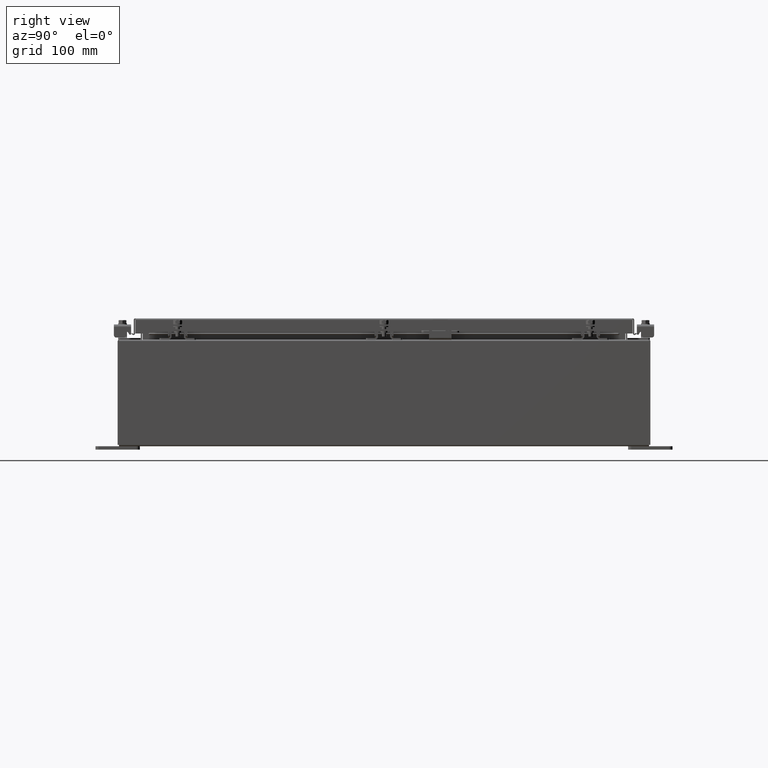
[diagram: clean part render]
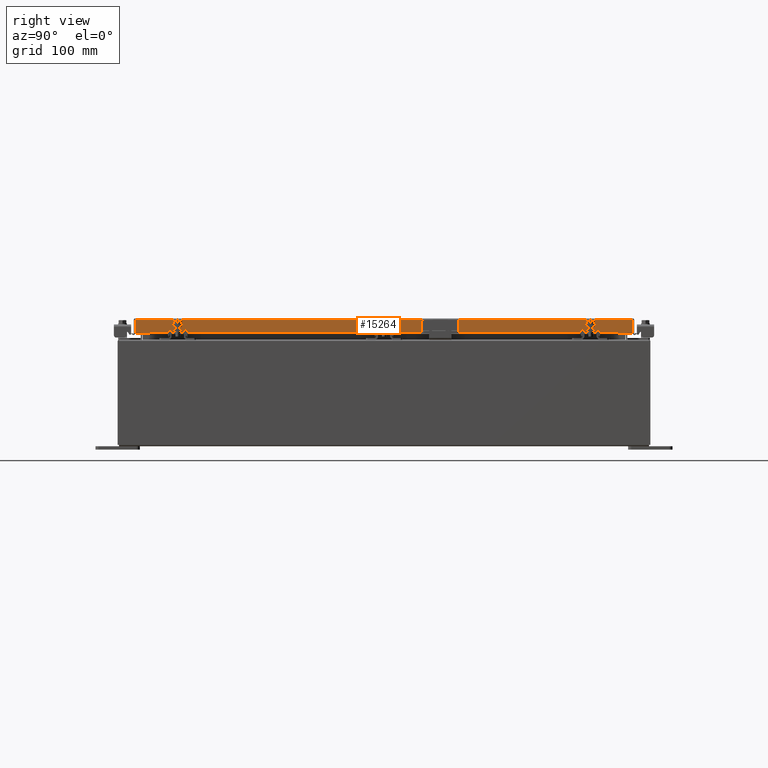
[diagram: same view with one face highlighted and labeled with its STEP entity id]
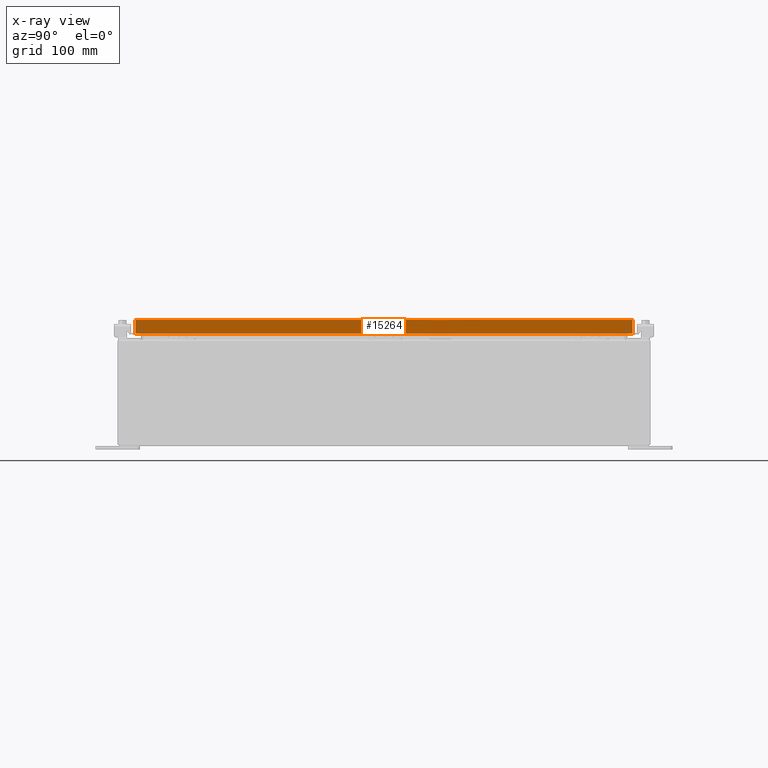
[diagram: x-ray of the same camera — body ghosted, the highlighted face saturated]
A machine part, right view. The second image highlights one B-rep face of the part: STEP entity #15264.
The next image is the same camera in x-ray: the body ghosted, the highlighted face saturated — about 0% of this face is hidden behind the body in this view.
In plain terms, the highlighted planar face has unit normal (1, 0, 0).
Its self-contained STEP definition (entity closure, byte-faithful):
#680 = EDGE_LOOP ( 'NONE', ( #7205, #2500, #27407, #28586, #28161, #19415 ) ) ;
#1104 = PLANE ( 'NONE',  #18588 ) ;
#1155 = CARTESIAN_POINT ( 'NONE',  ( 11.07799999999999900, -14.00515786437626900, -0.08770000000000007000 ) ) ;
#2500 = ORIENTED_EDGE ( 'NONE', *, *, #4472, .F. ) ;
#4132 = DIRECTION ( 'NONE',  ( 1.000000000000000000, 0.0000000000000000000, 2.818880942772360100E-015 ) ) ;
#4472 = EDGE_CURVE ( 'NONE', #8360, #16250, #14897, .T. ) ;
#5464 = VERTEX_POINT ( 'NONE', #25084 ) ;
#7205 = ORIENTED_EDGE ( 'NONE', *, *, #32536, .F. ) ;
#7860 = CARTESIAN_POINT ( 'NONE',  ( 11.07799999999999900, -14.00515786437626900, -0.07469999999999978000 ) ) ;
#8079 = DIRECTION ( 'NONE',  ( 0.0000000000000000000, -1.000000000000000000, 0.0000000000000000000 ) ) ;
#8360 = VERTEX_POINT ( 'NONE', #18161 ) ;
#9081 = DIRECTION ( 'NONE',  ( 0.0000000000000000000, -1.000000000000000000, 0.0000000000000000000 ) ) ;
#10492 = DIRECTION ( 'NONE',  ( 2.818880942772360100E-015, 0.0000000000000000000, -1.000000000000000000 ) ) ;
#10718 = DIRECTION ( 'NONE',  ( -2.818880942772360100E-015, -6.982962677686265900E-015, 1.000000000000000000 ) ) ;
#10843 = VECTOR ( 'NONE', #9081, 39.37007874015748100 ) ;
#11229 = CARTESIAN_POINT ( 'NONE',  ( 11.07799999999999900, 0.0000000000000000000, 3.148837674004379000E-014 ) ) ;
#12490 = LINE ( 'NONE', #32514, #26314 ) ;
#12632 = VECTOR ( 'NONE', #35004, 39.37007874015748100 ) ;
#12688 = CARTESIAN_POINT ( 'NONE',  ( 11.07799999999999900, 14.00515786437626500, -0.08770000000000007000 ) ) ;
#13589 = LINE ( 'NONE', #7860, #36063 ) ;
#14287 = VECTOR ( 'NONE', #14658, 39.37007874015748100 ) ;
#14658 = DIRECTION ( 'NONE',  ( 0.0000000000000000000, -1.000000000000000000, 0.0000000000000000000 ) ) ;
#14897 = LINE ( 'NONE', #26353, #14287 ) ;
#15264 = ADVANCED_FACE ( 'NONE', ( #20778 ), #1104, .T. ) ;
#16066 = VECTOR ( 'NONE', #8079, 39.37007874015748100 ) ;
#16210 = VERTEX_POINT ( 'NONE', #12688 ) ;
#16250 = VERTEX_POINT ( 'NONE', #25979 ) ;
#16543 = VERTEX_POINT ( 'NONE', #1155 ) ;
#18161 = CARTESIAN_POINT ( 'NONE',  ( 11.07799999999999400, -13.25515786437626400, -0.8500000000000018700 ) ) ;
#18588 = AXIS2_PLACEMENT_3D ( 'NONE', #11229, #4132, #10492 ) ;
#19415 = ORIENTED_EDGE ( 'NONE', *, *, #24937, .T. ) ;
#20778 = FACE_OUTER_BOUND ( 'NONE', #680, .T. ) ;
#22656 = EDGE_CURVE ( 'NONE', #22873, #8360, #35734, .T. ) ;
#22873 = VERTEX_POINT ( 'NONE', #37506 ) ;
#23724 = CARTESIAN_POINT ( 'NONE',  ( 11.07799999999999900, 0.0000000000000000000, -0.08770000000000007000 ) ) ;
#24937 = EDGE_CURVE ( 'NONE', #16210, #16543, #29263, .T. ) ;
#25084 = CARTESIAN_POINT ( 'NONE',  ( 11.07800000000000300, 14.00515786437627200, -0.8499999999999996400 ) ) ;
#25593 = EDGE_CURVE ( 'NONE', #5464, #16210, #12490, .T. ) ;
#25979 = CARTESIAN_POINT ( 'NONE',  ( 11.07800000000000300, -14.00515786437626400, -0.8499999999999996400 ) ) ;
#26314 = VECTOR ( 'NONE', #34805, 39.37007874015748100 ) ;
#26353 = CARTESIAN_POINT ( 'NONE',  ( 11.07800000000000300, -14.09399999999999900, -0.8499999999999996400 ) ) ;
#27407 = ORIENTED_EDGE ( 'NONE', *, *, #22656, .F. ) ;
#28161 = ORIENTED_EDGE ( 'NONE', *, *, #25593, .T. ) ;
#28404 = EDGE_CURVE ( 'NONE', #5464, #22873, #31971, .T. ) ;
#28586 = ORIENTED_EDGE ( 'NONE', *, *, #28404, .F. ) ;
#29016 = CARTESIAN_POINT ( 'NONE',  ( 11.07800000000000300, -14.09399999999999900, -0.8499999999999996400 ) ) ;
#29263 = LINE ( 'NONE', #23724, #16066 ) ;
#31971 = LINE ( 'NONE', #29016, #10843 ) ;
#32514 = CARTESIAN_POINT ( 'NONE',  ( 11.07799999999999900, 14.00515786437626900, 1.292858714020875700E-013 ) ) ;
#32536 = EDGE_CURVE ( 'NONE', #16250, #16543, #13589, .T. ) ;
#34805 = DIRECTION ( 'NONE',  ( -2.818880942772360100E-015, -6.982962677686265900E-015, 1.000000000000000000 ) ) ;
#35004 = DIRECTION ( 'NONE',  ( 0.0000000000000000000, -1.000000000000000000, 0.0000000000000000000 ) ) ;
#35734 = LINE ( 'NONE', #37178, #12632 ) ;
#36063 = VECTOR ( 'NONE', #10718, 39.37007874015748100 ) ;
#37178 = CARTESIAN_POINT ( 'NONE',  ( 11.07799999999999400, 13.25515786437627200, -0.8500000000000018700 ) ) ;
#37506 = CARTESIAN_POINT ( 'NONE',  ( 11.07799999999999400, 13.25515786437626500, -0.8500000000000018700 ) ) ;